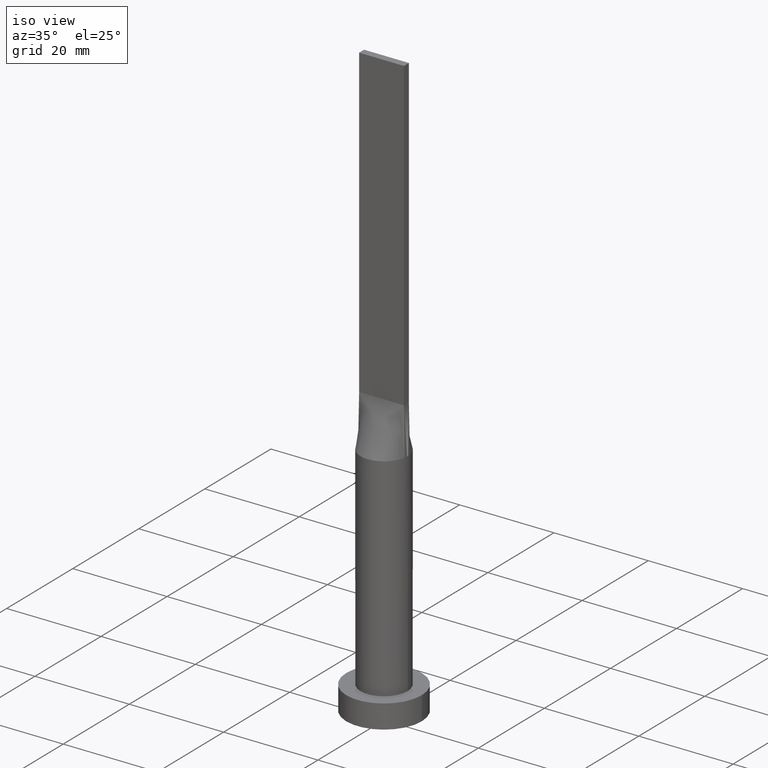
[diagram: clean part render]
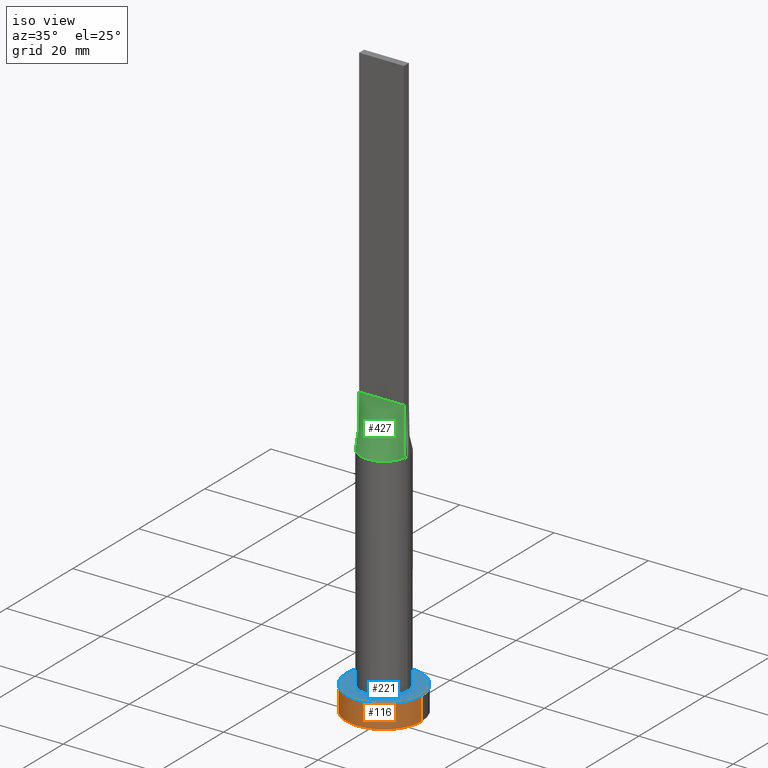
[diagram: same view with three faces highlighted in distinct colors, each labeled with its STEP entity id]
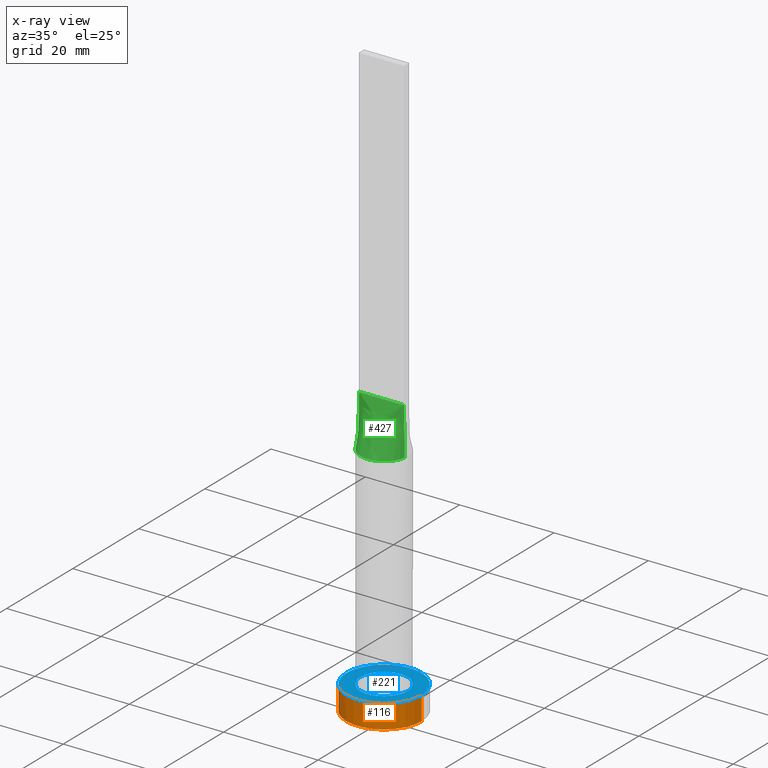
[diagram: x-ray of the same camera — body ghosted, the three highlighted faces saturated]
A machine part, iso view with three faces highlighted in distinct colors.
The next image is the same camera in x-ray (body ghosted, the three faces saturated) — at least one of them is partly hidden behind the body in this view.
Their STEP definitions:

[orange] entity #116 — the highlighted cylindrical surface (partial cylindrical patch) has radius 8 mm, axis along (-0, -0, -1).
#34 = EDGE_CURVE ( 'NONE', #548, #294, #518, .T. ) ;
#46 = EDGE_LOOP ( 'NONE', ( #335, #98, #445, #104 ) ) ;
#59 = CARTESIAN_POINT ( 'NONE',  ( 8.000000000000000000, 9.797174393178825657E-16, 5.000000000000000000 ) ) ;
#98 = ORIENTED_EDGE ( 'NONE', *, *, #34, .F. ) ;
#104 = ORIENTED_EDGE ( 'NONE', *, *, #329, .T. ) ;
#114 = DIRECTION ( 'NONE',  ( -0.000000000000000000, -0.000000000000000000, -1.000000000000000000 ) ) ;
#116 = ADVANCED_FACE ( 'NONE', ( #429 ), #170, .T. ) ;
#134 = CIRCLE ( 'NONE', #532, 8.000000000000000000 ) ;
#140 = VERTEX_POINT ( 'NONE', #326 ) ;
#163 = CARTESIAN_POINT ( 'NONE',  ( -8.000000000000000000, 0.000000000000000000, 5.000000000000000000 ) ) ;
#169 = DIRECTION ( 'NONE',  ( 0.000000000000000000, 0.000000000000000000, 1.000000000000000000 ) ) ;
#170 = CYLINDRICAL_SURFACE ( 'NONE', #566, 8.000000000000000000 ) ;
#210 = DIRECTION ( 'NONE',  ( 0.000000000000000000, 0.000000000000000000, 1.000000000000000000 ) ) ;
#214 = CARTESIAN_POINT ( 'NONE',  ( 8.000000000000000000, 9.797174393178825657E-16, 0.000000000000000000 ) ) ;
#216 = AXIS2_PLACEMENT_3D ( 'NONE', #431, #210, #391 ) ;
#224 = CARTESIAN_POINT ( 'NONE',  ( 0.000000000000000000, 0.000000000000000000, 5.000000000000000000 ) ) ;
#231 = VECTOR ( 'NONE', #396, 1000.000000000000000 ) ;
#253 = VERTEX_POINT ( 'NONE', #214 ) ;
#262 = EDGE_CURVE ( 'NONE', #294, #253, #300, .T. ) ;
#294 = VERTEX_POINT ( 'NONE', #543 ) ;
#300 = LINE ( 'NONE', #59, #231 ) ;
#313 = LINE ( 'NONE', #401, #541 ) ;
#326 = CARTESIAN_POINT ( 'NONE',  ( -8.000000000000000000, 0.000000000000000000, 0.000000000000000000 ) ) ;
#329 = EDGE_CURVE ( 'NONE', #140, #253, #134, .T. ) ;
#335 = ORIENTED_EDGE ( 'NONE', *, *, #262, .F. ) ;
#391 = DIRECTION ( 'NONE',  ( 1.000000000000000000, 0.000000000000000000, 0.000000000000000000 ) ) ;
#396 = DIRECTION ( 'NONE',  ( -0.000000000000000000, -0.000000000000000000, -1.000000000000000000 ) ) ;
#401 = CARTESIAN_POINT ( 'NONE',  ( -8.000000000000000000, 0.000000000000000000, 5.000000000000000000 ) ) ;
#429 = FACE_OUTER_BOUND ( 'NONE', #46, .T. ) ;
#431 = CARTESIAN_POINT ( 'NONE',  ( 0.000000000000000000, 0.000000000000000000, 5.000000000000000000 ) ) ;
#445 = ORIENTED_EDGE ( 'NONE', *, *, #587, .T. ) ;
#462 = DIRECTION ( 'NONE',  ( 1.000000000000000000, 0.000000000000000000, 0.000000000000000000 ) ) ;
#518 = CIRCLE ( 'NONE', #216, 8.000000000000000000 ) ;
#532 = AXIS2_PLACEMENT_3D ( 'NONE', #596, #169, #462 ) ;
#535 = DIRECTION ( 'NONE',  ( -0.000000000000000000, -0.000000000000000000, -1.000000000000000000 ) ) ;
#540 = DIRECTION ( 'NONE',  ( -1.000000000000000000, 0.000000000000000000, 0.000000000000000000 ) ) ;
#541 = VECTOR ( 'NONE', #535, 1000.000000000000000 ) ;
#543 = CARTESIAN_POINT ( 'NONE',  ( 8.000000000000000000, 9.797174393178825657E-16, 5.000000000000000000 ) ) ;
#548 = VERTEX_POINT ( 'NONE', #163 ) ;
#566 = AXIS2_PLACEMENT_3D ( 'NONE', #224, #114, #540 ) ;
#587 = EDGE_CURVE ( 'NONE', #548, #140, #313, .T. ) ;
#596 = CARTESIAN_POINT ( 'NONE',  ( 0.000000000000000000, 0.000000000000000000, 0.000000000000000000 ) ) ;

[blue] entity #221 — the highlighted planar face has unit normal (0, 0, 1).
#34 = EDGE_CURVE ( 'NONE', #548, #294, #518, .T. ) ;
#36 = AXIS2_PLACEMENT_3D ( 'NONE', #94, #248, #38 ) ;
#38 = DIRECTION ( 'NONE',  ( 1.000000000000000000, 0.000000000000000000, -0.000000000000000000 ) ) ;
#69 = CIRCLE ( 'NONE', #557, 5.000000000000000000 ) ;
#71 = CARTESIAN_POINT ( 'NONE',  ( 0.000000000000000000, 0.000000000000000000, 5.000000000000000000 ) ) ;
#73 = EDGE_CURVE ( 'NONE', #294, #548, #405, .T. ) ;
#81 = CARTESIAN_POINT ( 'NONE',  ( 0.000000000000000000, 0.000000000000000000, 5.000000000000000000 ) ) ;
#94 = CARTESIAN_POINT ( 'NONE',  ( 0.000000000000000000, 0.000000000000000000, 5.000000000000000000 ) ) ;
#108 = AXIS2_PLACEMENT_3D ( 'NONE', #81, #560, #568 ) ;
#111 = CARTESIAN_POINT ( 'NONE',  ( 5.000000000000000000, 6.123233995736765296E-16, 5.000000000000000000 ) ) ;
#124 = FACE_BOUND ( 'NONE', #468, .T. ) ;
#125 = DIRECTION ( 'NONE',  ( 1.000000000000000000, 0.000000000000000000, 0.000000000000000000 ) ) ;
#128 = PLANE ( 'NONE',  #36 ) ;
#142 = DIRECTION ( 'NONE',  ( 1.000000000000000000, 0.000000000000000000, 0.000000000000000000 ) ) ;
#145 = EDGE_CURVE ( 'NONE', #202, #220, #344, .T. ) ;
#163 = CARTESIAN_POINT ( 'NONE',  ( -8.000000000000000000, 0.000000000000000000, 5.000000000000000000 ) ) ;
#181 = ORIENTED_EDGE ( 'NONE', *, *, #73, .T. ) ;
#192 = ORIENTED_EDGE ( 'NONE', *, *, #34, .T. ) ;
#202 = VERTEX_POINT ( 'NONE', #111 ) ;
#210 = DIRECTION ( 'NONE',  ( 0.000000000000000000, 0.000000000000000000, 1.000000000000000000 ) ) ;
#216 = AXIS2_PLACEMENT_3D ( 'NONE', #431, #210, #391 ) ;
#220 = VERTEX_POINT ( 'NONE', #457 ) ;
#221 = ADVANCED_FACE ( 'NONE', ( #124, #599 ), #128, .T. ) ;
#248 = DIRECTION ( 'NONE',  ( 0.000000000000000000, 0.000000000000000000, 1.000000000000000000 ) ) ;
#294 = VERTEX_POINT ( 'NONE', #543 ) ;
#344 = CIRCLE ( 'NONE', #579, 5.000000000000000000 ) ;
#354 = ORIENTED_EDGE ( 'NONE', *, *, #593, .F. ) ;
#367 = ORIENTED_EDGE ( 'NONE', *, *, #145, .F. ) ;
#381 = CARTESIAN_POINT ( 'NONE',  ( 0.000000000000000000, 0.000000000000000000, 5.000000000000000000 ) ) ;
#383 = EDGE_LOOP ( 'NONE', ( #192, #181 ) ) ;
#391 = DIRECTION ( 'NONE',  ( 1.000000000000000000, 0.000000000000000000, 0.000000000000000000 ) ) ;
#405 = CIRCLE ( 'NONE', #108, 8.000000000000000000 ) ;
#431 = CARTESIAN_POINT ( 'NONE',  ( 0.000000000000000000, 0.000000000000000000, 5.000000000000000000 ) ) ;
#457 = CARTESIAN_POINT ( 'NONE',  ( -5.000000000000000000, 0.000000000000000000, 5.000000000000000000 ) ) ;
#468 = EDGE_LOOP ( 'NONE', ( #354, #367 ) ) ;
#507 = DIRECTION ( 'NONE',  ( 0.000000000000000000, 0.000000000000000000, 1.000000000000000000 ) ) ;
#518 = CIRCLE ( 'NONE', #216, 8.000000000000000000 ) ;
#543 = CARTESIAN_POINT ( 'NONE',  ( 8.000000000000000000, 9.797174393178825657E-16, 5.000000000000000000 ) ) ;
#548 = VERTEX_POINT ( 'NONE', #163 ) ;
#557 = AXIS2_PLACEMENT_3D ( 'NONE', #71, #605, #125 ) ;
#560 = DIRECTION ( 'NONE',  ( 0.000000000000000000, 0.000000000000000000, 1.000000000000000000 ) ) ;
#568 = DIRECTION ( 'NONE',  ( 1.000000000000000000, 0.000000000000000000, 0.000000000000000000 ) ) ;
#579 = AXIS2_PLACEMENT_3D ( 'NONE', #381, #507, #142 ) ;
#593 = EDGE_CURVE ( 'NONE', #220, #202, #69, .T. ) ;
#599 = FACE_OUTER_BOUND ( 'NONE', #383, .T. ) ;
#605 = DIRECTION ( 'NONE',  ( 0.000000000000000000, 0.000000000000000000, 1.000000000000000000 ) ) ;

[green] entity #427 — the highlighted face is a freeform B-spline surface patch.
#1 = CARTESIAN_POINT ( 'NONE',  ( 2.177083333333337034, -0.7499999999999997780, 60.00000000000000000 ) ) ;
#26 = CARTESIAN_POINT ( 'NONE',  ( -2.353781608410061121, -4.424438117685769889, 49.99999999999998579 ) ) ;
#29 = CARTESIAN_POINT ( 'NONE',  ( 4.750000000000000000, -0.7499999999999997780, 60.00000000000000000 ) ) ;
#30 = CARTESIAN_POINT ( 'NONE',  ( 2.353781608410061121, -4.424438117685769889, 49.99999999999998579 ) ) ;
#47 = CARTESIAN_POINT ( 'NONE',  ( 1.583333333333336146, -0.7499999999999997780, 60.00000000000000000 ) ) ;
#55 = EDGE_CURVE ( 'NONE', #131, #379, #154, .T. ) ;
#68 = CARTESIAN_POINT ( 'NONE',  ( 1.732223102076449583, -4.702695359254404295, 49.99999999999999289 ) ) ;
#72 = CARTESIAN_POINT ( 'NONE',  ( -4.753727492665065668, -1.629988260829201119, 50.00000000000000000 ) ) ;
#77 = CARTESIAN_POINT ( 'NONE',  ( 1.400150253878312157, -4.812847332616943419, 49.99999999999997868 ) ) ;
#79 = VECTOR ( 'NONE', #177, 1000.000000000000114 ) ;
#92 = CARTESIAN_POINT ( 'NONE',  ( 4.354166666666667851, -0.7499999999999997780, 60.00000000000000000 ) ) ;
#102 = EDGE_LOOP ( 'NONE', ( #282, #443, #607, #359 ) ) ;
#126 = CARTESIAN_POINT ( 'NONE',  ( -0.7916666666666640761, -0.7499999999999995559, 60.00000000000000000 ) ) ;
#130 = CARTESIAN_POINT ( 'NONE',  ( -4.750000000000000000, -0.7499999999999991118, 60.00000000000000000 ) ) ;
#131 = VERTEX_POINT ( 'NONE', #360 ) ;
#132 = CARTESIAN_POINT ( 'NONE',  ( -0.3958333333333313164, -0.7499999999999995559, 59.99999999999998579 ) ) ;
#143 = CARTESIAN_POINT ( 'NONE',  ( 1.979166666666669849, -0.7499999999999997780, 60.00000000000000000 ) ) ;
#147 = CARTESIAN_POINT ( 'NONE',  ( 2.643217737595827455, -4.256483892511438327, 49.99999999999998579 ) ) ;
#154 = LINE ( 'NONE', #346, #552 ) ;
#161 = DIRECTION ( 'NONE',  ( -0.01887803397728732291, -0.002980742206940062075, -0.9998173508241633423 ) ) ;
#164 = EDGE_CURVE ( 'NONE', #131, #617, #187, .T. ) ;
#172 = LINE ( 'NONE', #455, #79 ) ;
#173 = CARTESIAN_POINT ( 'NONE',  ( -2.643217737595827010, -4.256483892511436551, 49.99999999999997868 ) ) ;
#177 = DIRECTION ( 'NONE',  ( -0.01887803397728732291, 0.002980742206940386902, 0.9998173508241633423 ) ) ;
#183 = CARTESIAN_POINT ( 'NONE',  ( -4.354166666666666963, -0.7499999999999992228, 60.00000000000000000 ) ) ;
#187 = LINE ( 'NONE', #199, #590 ) ;
#190 = CARTESIAN_POINT ( 'NONE',  ( 3.168723755431094080, -3.881165404529570484, 50.00000000000000000 ) ) ;
#199 = CARTESIAN_POINT ( 'NONE',  ( -4.750000000000000000, -0.7499999999999991118, 60.00000000000000000 ) ) ;
#223 = CARTESIAN_POINT ( 'NONE',  ( -3.166666666666665630, -0.7499999999999993339, 60.00000000000000000 ) ) ;
#234 = CARTESIAN_POINT ( 'NONE',  ( 0.1979166666666679897, -0.7499999999999994449, 59.99999999999997868 ) ) ;
#239 = CARTESIAN_POINT ( 'NONE',  ( 2.770833333333337034, -0.7499999999999997780, 60.00000000000000000 ) ) ;
#242 = CARTESIAN_POINT ( 'NONE',  ( 4.938833698301754893, -0.7798158709413661738, 49.99999999999999289 ) ) ;
#265 = DIRECTION ( 'NONE',  ( 1.000000000000000000, 0.000000000000000000, 0.000000000000000000 ) ) ;
#268 = CARTESIAN_POINT ( 'NONE',  ( -2.770833333333332149, -0.7499999999999994449, 60.00000000000000000 ) ) ;
#269 = CARTESIAN_POINT ( 'NONE',  ( 0.000000000000000000, 0.000000000000000000, 49.99999999999999289 ) ) ;
#279 = CARTESIAN_POINT ( 'NONE',  ( 4.938814826645345768, -0.7798128673650571718, 49.99999999999999289 ) ) ;
#282 = ORIENTED_EDGE ( 'NONE', *, *, #308, .T. ) ;
#308 = EDGE_CURVE ( 'NONE', #379, #480, #410, .T. ) ;
#311 = CARTESIAN_POINT ( 'NONE',  ( 0.3560391241594588196, -5.000000000000000888, 50.00000000000000000 ) ) ;
#317 = CARTESIAN_POINT ( 'NONE',  ( -4.874625637456154514, -1.186344398896584718, 50.00000000000000000 ) ) ;
#320 = CARTESIAN_POINT ( 'NONE',  ( 0.3958333333333353132, -0.7499999999999994449, 59.99999999999998579 ) ) ;
#327 = CARTESIAN_POINT ( 'NONE',  ( 3.404830936252118967, -3.673931880027069496, 50.00000000000000711 ) ) ;
#343 = CARTESIAN_POINT ( 'NONE',  ( 4.029217956433124748, -3.021257902548483365, 50.00000000000002842 ) ) ;
#346 = CARTESIAN_POINT ( 'NONE',  ( -4.844407413322673328, -0.7649064336825261989, 54.99999999999999289 ) ) ;
#359 = ORIENTED_EDGE ( 'NONE', *, *, #55, .T. ) ;
#360 = CARTESIAN_POINT ( 'NONE',  ( -4.750000000000000000, -0.7499999999999991118, 60.00000000000000000 ) ) ;
#364 = CARTESIAN_POINT ( 'NONE',  ( -4.029217956433126524, -3.021257902548482033, 50.00000000000000000 ) ) ;
#368 = CARTESIAN_POINT ( 'NONE',  ( -1.583333333333331039, -0.7499999999999995559, 60.00000000000000000 ) ) ;
#375 = CARTESIAN_POINT ( 'NONE',  ( -3.958333333333333481, -0.7499999999999993339, 60.00000000000000000 ) ) ;
#377 = CARTESIAN_POINT ( 'NONE',  ( -0.9895833333333305948, -0.7499999999999995559, 60.00000000000000000 ) ) ;
#379 = VERTEX_POINT ( 'NONE', #407 ) ;
#404 = CARTESIAN_POINT ( 'NONE',  ( -0.3560391241594598188, -5.000000000000001776, 50.00000000000000000 ) ) ;
#407 = CARTESIAN_POINT ( 'NONE',  ( -4.938821632323166178, -0.7798139456827059002, 49.99999999999999289 ) ) ;
#410 = CIRCLE ( 'NONE', #515, 5.000000000000000000 ) ;
#412 = CARTESIAN_POINT ( 'NONE',  ( -2.177083333333332149, -0.7499999999999995559, 60.00000000000000000 ) ) ;
#415 = CARTESIAN_POINT ( 'NONE',  ( -0.1979166666666653251, -0.7499999999999994449, 59.99999999999997868 ) ) ;
#418 = CARTESIAN_POINT ( 'NONE',  ( -4.938814826645345768, -0.7798128673650532861, 49.99999999999999289 ) ) ;
#427 = ADVANCED_FACE ( 'NONE', ( #549 ), #608, .T. ) ;
#443 = ORIENTED_EDGE ( 'NONE', *, *, #612, .T. ) ;
#449 = CARTESIAN_POINT ( 'NONE',  ( -3.168723755431094524, -3.881165404529569152, 50.00000000000000000 ) ) ;
#454 = DIRECTION ( 'NONE',  ( 0.000000000000000000, 0.000000000000000000, 1.000000000000000000 ) ) ;
#455 = CARTESIAN_POINT ( 'NONE',  ( 4.844407413322673328, -0.7649064336825285304, 54.99999999999999289 ) ) ;
#456 = CARTESIAN_POINT ( 'NONE',  ( -1.385416666666664076, -0.7499999999999995559, 60.00000000000000000 ) ) ;
#461 = CARTESIAN_POINT ( 'NONE',  ( 0.9895833333333360349, -0.7499999999999996669, 59.99999999999999289 ) ) ;
#470 = CARTESIAN_POINT ( 'NONE',  ( 1.385416666666669405, -0.7499999999999997780, 60.00000000000000000 ) ) ;
#476 = CARTESIAN_POINT ( 'NONE',  ( 3.166666666666670071, -0.7499999999999997780, 60.00000000000000000 ) ) ;
#480 = VERTEX_POINT ( 'NONE', #242 ) ;
#493 = CARTESIAN_POINT ( 'NONE',  ( 0.7119876437238003009, -4.961551549233181646, 49.99999999999999289 ) ) ;
#502 = CARTESIAN_POINT ( 'NONE',  ( 0.7916666666666694052, -0.7499999999999995559, 59.99999999999998579 ) ) ;
#504 = CARTESIAN_POINT ( 'NONE',  ( -0.7119876437238014111, -4.961551549233179870, 50.00000000000000000 ) ) ;
#508 = CARTESIAN_POINT ( 'NONE',  ( 4.753727492665065668, -1.629988260829203561, 49.99999999999998579 ) ) ;
#511 = CARTESIAN_POINT ( 'NONE',  ( 4.750000000000000000, -0.7499999999999997780, 60.00000000000000000 ) ) ;
#515 = AXIS2_PLACEMENT_3D ( 'NONE', #269, #454, #265 ) ;
#539 = CARTESIAN_POINT ( 'NONE',  ( -3.404830936252120299, -3.673931880027065056, 49.99999999999999289 ) ) ;
#545 = CARTESIAN_POINT ( 'NONE',  ( -1.732223102076450250, -4.702695359254402518, 50.00000000000000711 ) ) ;
#549 = FACE_OUTER_BOUND ( 'NONE', #102, .T. ) ;
#552 = VECTOR ( 'NONE', #161, 1000.000000000000114 ) ;
#555 = CARTESIAN_POINT ( 'NONE',  ( -1.979166666666665186, -0.7499999999999995559, 60.00000000000000000 ) ) ;
#558 = CARTESIAN_POINT ( 'NONE',  ( -1.400150253878313711, -4.812847332616943419, 50.00000000000000000 ) ) ;
#564 = CARTESIAN_POINT ( 'NONE',  ( 3.958333333333334370, -0.7499999999999997780, 60.00000000000000000 ) ) ;
#567 = CARTESIAN_POINT ( 'NONE',  ( 4.332026455536841070, -2.547220758687719577, 50.00000000000000711 ) ) ;
#575 = CARTESIAN_POINT ( 'NONE',  ( 4.874625637456156291, -1.186344398896586938, 49.99999999999998579 ) ) ;
#590 = VECTOR ( 'NONE', #610, 1000.000000000000000 ) ;
#598 = CARTESIAN_POINT ( 'NONE',  ( -4.332026455536839293, -2.547220758687717801, 50.00000000000000000 ) ) ;
#607 = ORIENTED_EDGE ( 'NONE', *, *, #164, .F. ) ;
#608 = B_SPLINE_SURFACE_WITH_KNOTS ( 'NONE', 3, 1, ( 
 ( #418, #130 ),
 ( #317, #183 ),
 ( #72, #375 ),
 ( #598, #223 ),
 ( #364, #268 ),
 ( #539, #412 ),
 ( #449, #555 ),
 ( #173, #368 ),
 ( #26, #456 ),
 ( #545, #377 ),
 ( #558, #126 ),
 ( #504, #132 ),
 ( #404, #415 ),
 ( #311, #234 ),
 ( #493, #320 ),
 ( #77, #502 ),
 ( #68, #461 ),
 ( #30, #470 ),
 ( #147, #47 ),
 ( #190, #143 ),
 ( #327, #1 ),
 ( #343, #239 ),
 ( #567, #476 ),
 ( #508, #564 ),
 ( #575, #92 ),
 ( #279, #511 ) ),
 .UNSPECIFIED., .F., .F., .F.,
 ( 4, 2, 2, 2, 2, 2, 2, 2, 2, 2, 2, 2, 4 ),
 ( 2, 2 ),
 ( 0.000000000000000000, 0.1250000000000000278, 0.2500000000000001110, 0.3125000000000001665, 0.3750000000000002220, 0.4375000000000002220, 0.5000000000000002220, 0.5625000000000002220, 0.6250000000000002220, 0.6875000000000002220, 0.7500000000000003331, 0.8750000000000002220, 1.000000000000000000 ),
 ( 0.000000000000000000, 1.000000000000000000 ),
 .UNSPECIFIED. ) ;
#610 = DIRECTION ( 'NONE',  ( 1.000000000000000000, -6.847592668329501559E-17, 0.000000000000000000 ) ) ;
#612 = EDGE_CURVE ( 'NONE', #480, #617, #172, .T. ) ;
#617 = VERTEX_POINT ( 'NONE', #29 ) ;